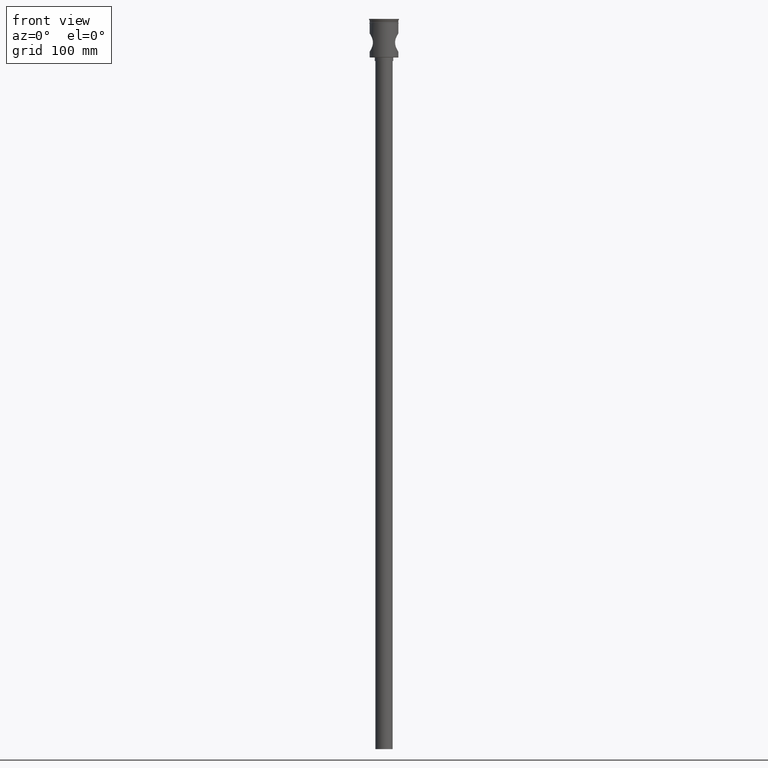
[diagram: clean part render]
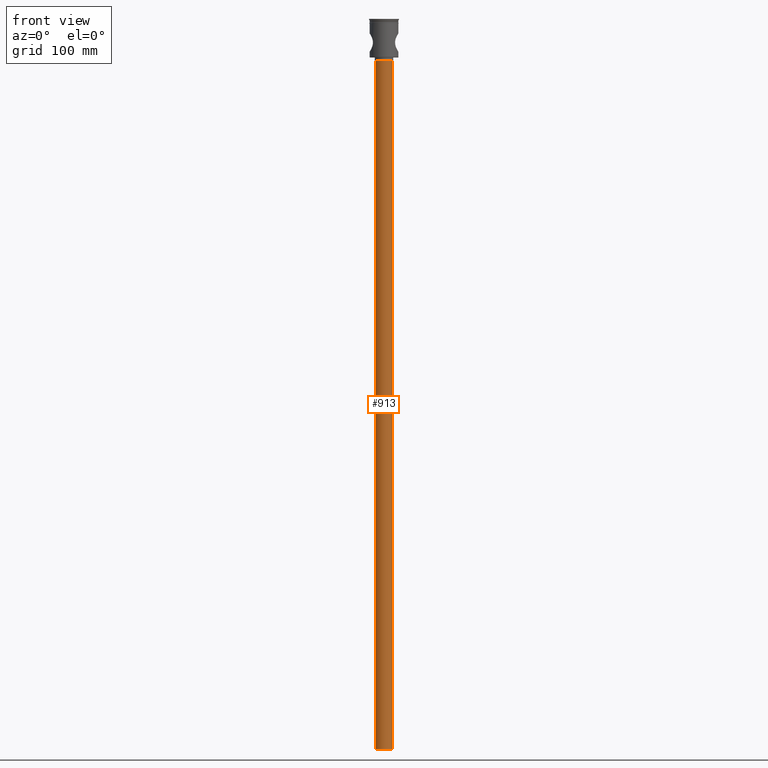
[diagram: same view with one face highlighted and labeled with its STEP entity id]
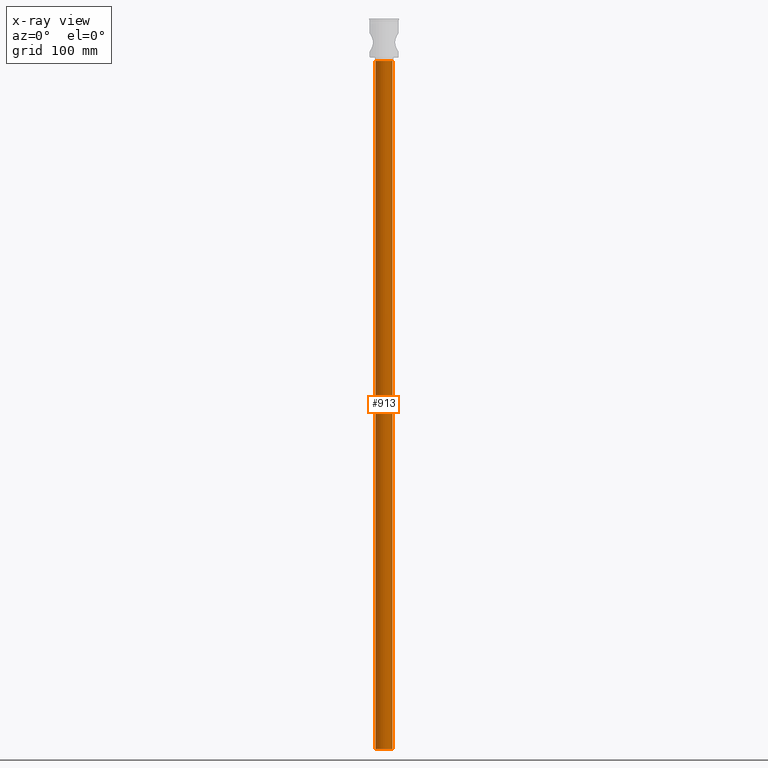
[diagram: x-ray of the same camera — body ghosted, the highlighted face saturated]
A machine part, front view. The second image highlights one B-rep face of the part: STEP entity #913.
The next image is the same camera in x-ray: the body ghosted, the highlighted face saturated — about 0% of this face is hidden behind the body in this view.
In plain terms, the highlighted cylindrical surface (edge-blend (fillet) strip) has radius 7.5 mm, axis along (-0, -0, 1).
Its self-contained STEP definition (entity closure, byte-faithful):
#37 = CYLINDRICAL_SURFACE ( 'NONE', #1247, 7.500000000000000000 ) ;
#93 = DIRECTION ( 'NONE',  ( -1.000000000000000000, 0.000000000000000000, 0.000000000000000000 ) ) ;
#111 = EDGE_LOOP ( 'NONE', ( #241, #645, #860, #1315 ) ) ;
#157 = VERTEX_POINT ( 'NONE', #1429 ) ;
#182 = EDGE_CURVE ( 'NONE', #885, #211, #1475, .T. ) ;
#211 = VERTEX_POINT ( 'NONE', #1480 ) ;
#214 = CIRCLE ( 'NONE', #1304, 7.500000000000000000 ) ;
#240 = CIRCLE ( 'NONE', #1003, 7.500000000000000000 ) ;
#241 = ORIENTED_EDGE ( 'NONE', *, *, #1383, .F. ) ;
#306 = EDGE_CURVE ( 'NONE', #211, #627, #214, .T. ) ;
#379 = CARTESIAN_POINT ( 'NONE',  ( 7.500000000000000000, 0.000000000000000000, -633.5000000000000000 ) ) ;
#463 = VECTOR ( 'NONE', #937, 1000.000000000000000 ) ;
#502 = DIRECTION ( 'NONE',  ( -0.000000000000000000, -0.000000000000000000, 1.000000000000000000 ) ) ;
#627 = VERTEX_POINT ( 'NONE', #1510 ) ;
#645 = ORIENTED_EDGE ( 'NONE', *, *, #671, .F. ) ;
#667 = CARTESIAN_POINT ( 'NONE',  ( 0.000000000000000000, 0.000000000000000000, -633.5000000000000000 ) ) ;
#671 = EDGE_CURVE ( 'NONE', #885, #157, #240, .T. ) ;
#675 = DIRECTION ( 'NONE',  ( 0.000000000000000000, 0.000000000000000000, -1.000000000000000000 ) ) ;
#719 = CARTESIAN_POINT ( 'NONE',  ( -7.500000000000000000, 9.184850993605147944E-16, -633.5000000000000000 ) ) ;
#728 = CARTESIAN_POINT ( 'NONE',  ( 7.500000000000000000, 0.000000000000000000, -633.5000000000000000 ) ) ;
#792 = VECTOR ( 'NONE', #1217, 1000.000000000000000 ) ;
#827 = LINE ( 'NONE', #719, #792 ) ;
#847 = DIRECTION ( 'NONE',  ( -1.000000000000000000, 0.000000000000000000, 0.000000000000000000 ) ) ;
#854 = DIRECTION ( 'NONE',  ( 0.000000000000000000, 0.000000000000000000, -1.000000000000000000 ) ) ;
#860 = ORIENTED_EDGE ( 'NONE', *, *, #182, .T. ) ;
#885 = VERTEX_POINT ( 'NONE', #379 ) ;
#913 = ADVANCED_FACE ( 'NONE', ( #1352 ), #37, .T. ) ;
#937 = DIRECTION ( 'NONE',  ( -0.000000000000000000, -0.000000000000000000, 1.000000000000000000 ) ) ;
#997 = DIRECTION ( 'NONE',  ( 1.000000000000000000, 0.000000000000000000, 0.000000000000000000 ) ) ;
#1003 = AXIS2_PLACEMENT_3D ( 'NONE', #667, #675, #93 ) ;
#1124 = CARTESIAN_POINT ( 'NONE',  ( 0.000000000000000000, 0.000000000000000000, -633.5000000000000000 ) ) ;
#1217 = DIRECTION ( 'NONE',  ( -0.000000000000000000, -0.000000000000000000, 1.000000000000000000 ) ) ;
#1247 = AXIS2_PLACEMENT_3D ( 'NONE', #1124, #502, #997 ) ;
#1304 = AXIS2_PLACEMENT_3D ( 'NONE', #1427, #854, #847 ) ;
#1315 = ORIENTED_EDGE ( 'NONE', *, *, #306, .T. ) ;
#1352 = FACE_OUTER_BOUND ( 'NONE', #111, .T. ) ;
#1383 = EDGE_CURVE ( 'NONE', #157, #627, #827, .T. ) ;
#1427 = CARTESIAN_POINT ( 'NONE',  ( 0.000000000000000000, 0.000000000000000000, -36.50000000000000711 ) ) ;
#1429 = CARTESIAN_POINT ( 'NONE',  ( -7.500000000000000000, 9.184850993605147944E-16, -633.5000000000000000 ) ) ;
#1475 = LINE ( 'NONE', #728, #463 ) ;
#1480 = CARTESIAN_POINT ( 'NONE',  ( 7.500000000000000000, 0.000000000000000000, -36.50000000000000711 ) ) ;
#1510 = CARTESIAN_POINT ( 'NONE',  ( -7.500000000000000000, 9.184850993605147944E-16, -36.50000000000000711 ) ) ;